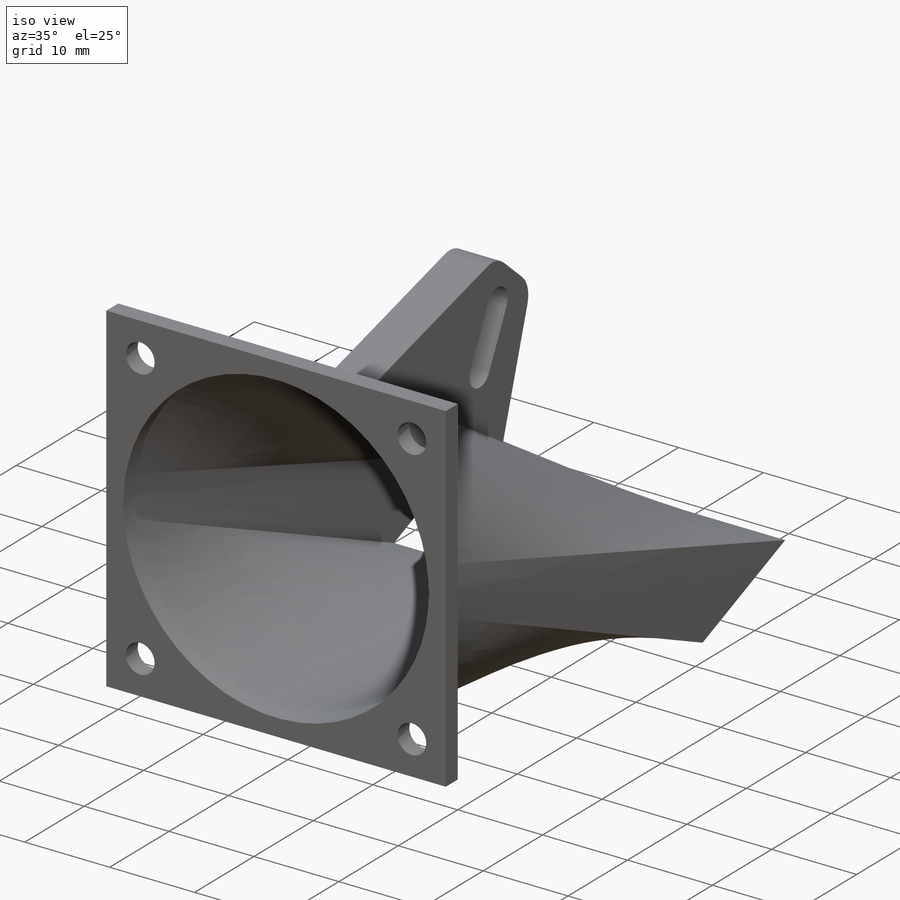
[diagram: iso view]
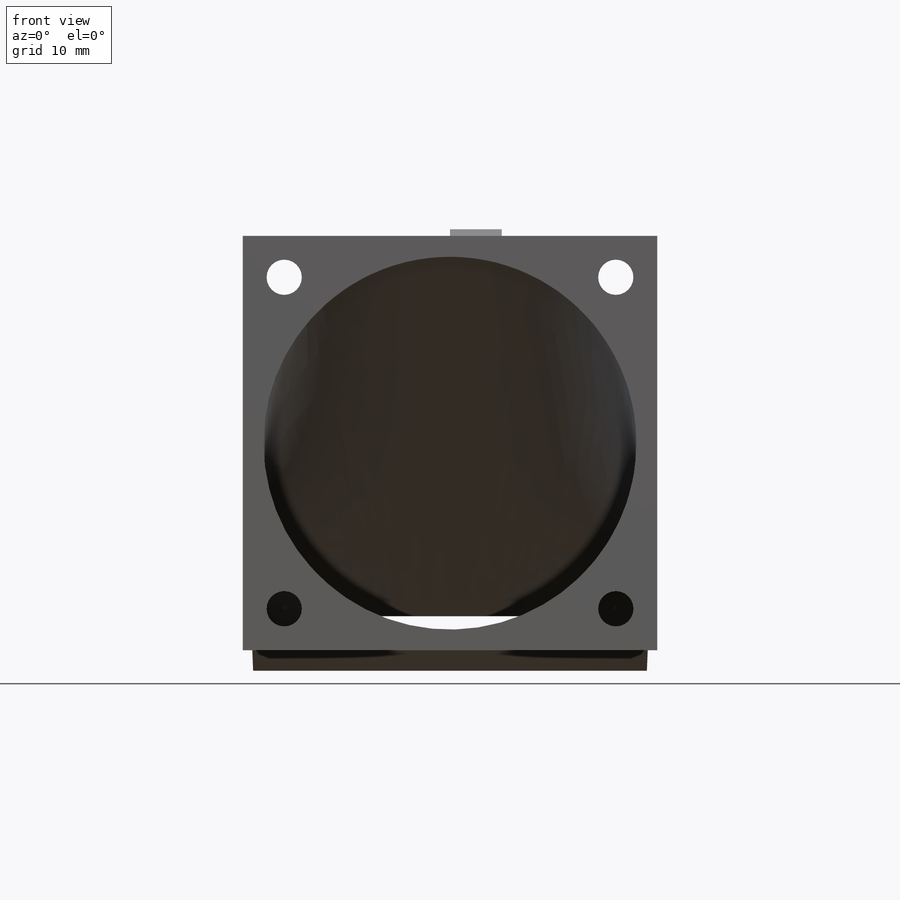
[diagram: front view]
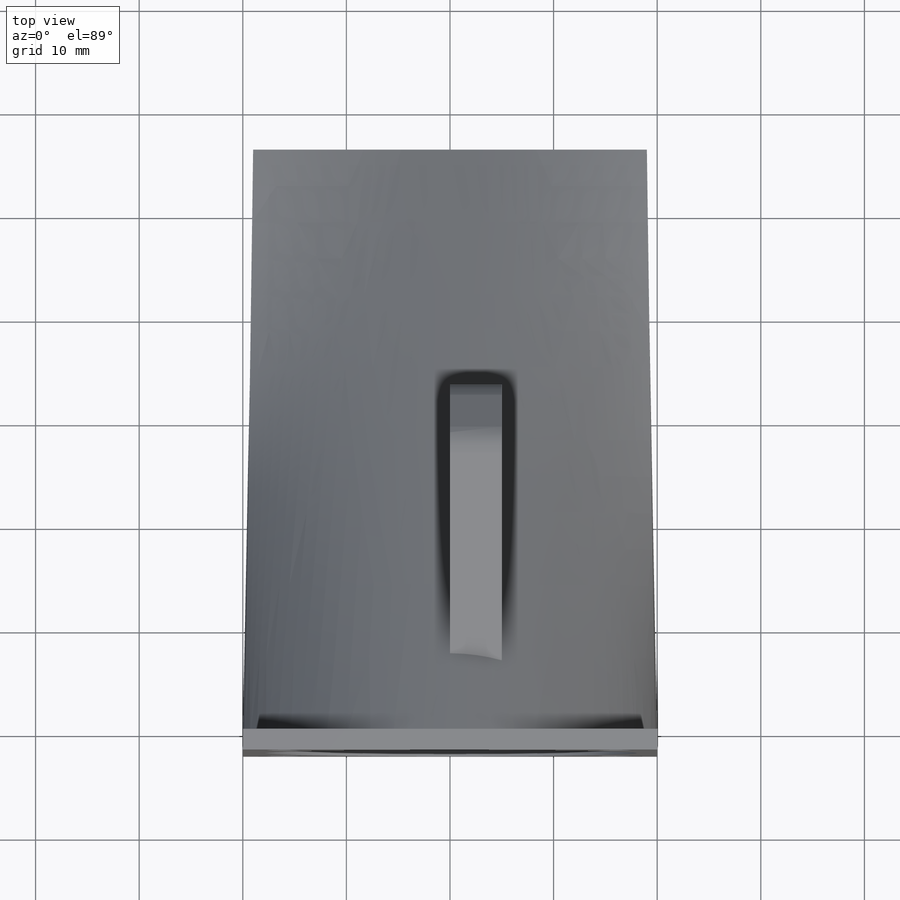
[diagram: top view]
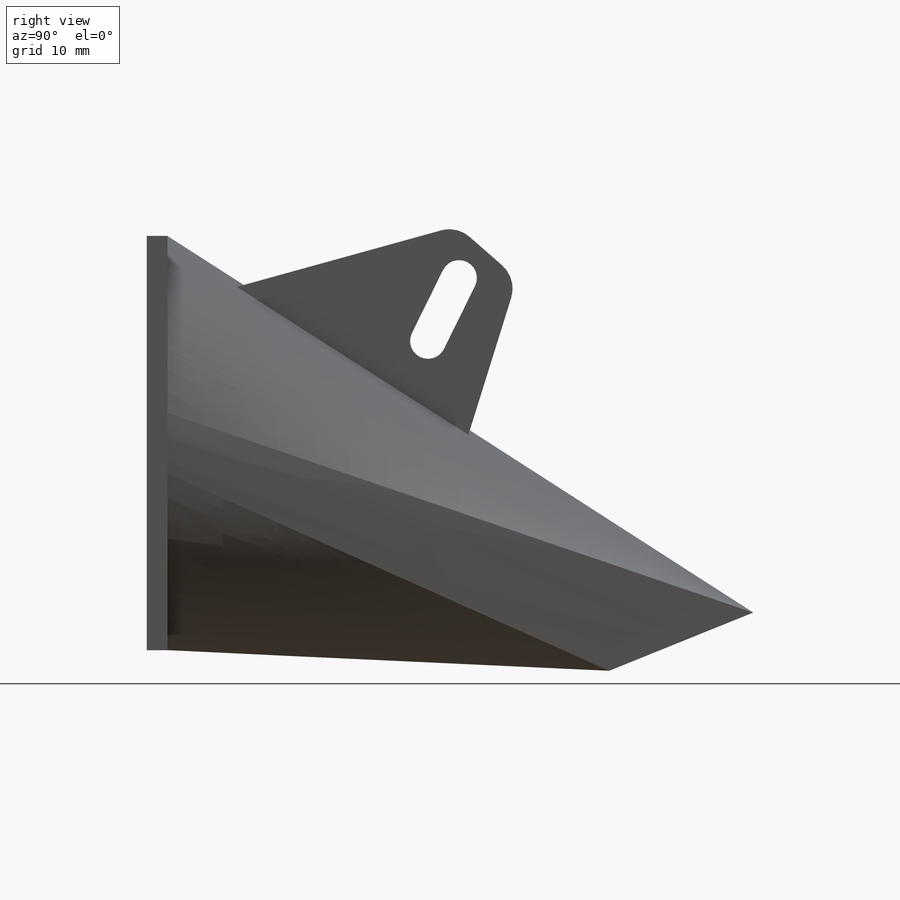
[diagram: right view]
SOLIDWORKS PART (.sldprt)
format: sldprt  version: not decoded by parser v0  size: 344,576 bytes
history: native  units: mm
features: sketch x7, plane x6, extrude x2, material x1 (+10 scaffold rows collapsed)
feature tree (26):
  scaffold x10  (default folders/planes/origin — collapsed)
  material  "Material <nicht angegeben>"
  plane  "Ebene vorne"
  plane  "Ebene oben"
  plane  "Ebene rechts"
  sketch  "Skizze2"  dims[c1.D1=~2.673582mm c1.D2=19.0mm c2.D1=16.0mm c3.D1=4.0]
  extrude  "Aufsatz-Linear austragen1"  Depth=2mm
  plane  "Ebene2"  Offset=50mm
  sketch  "Skizze3"
  sketch  "Skizze7"
  plane  "Ebene3"
  plane  "Ebene4"  Offset=20mm
  sketch  "Skizze4"  dims[D1=15.0mm]
  sketch  "Skizze5"  dims[D1=19.0mm]
  sketch  "Skizze8"  dims[D1=1.0mm]
  sketch  "Skizze9"  dims[D1=3.0mm D2=1.0mm]
  extrude  "Aufsatz-Linear austragen2"  Depth=5mm
decode coverage: 7 of 9 modeling features carry decoded parameters
note: ~ marks probable driven/reference dimensions
note: suppression state not decoded; provenance and decode notes live in map.json
